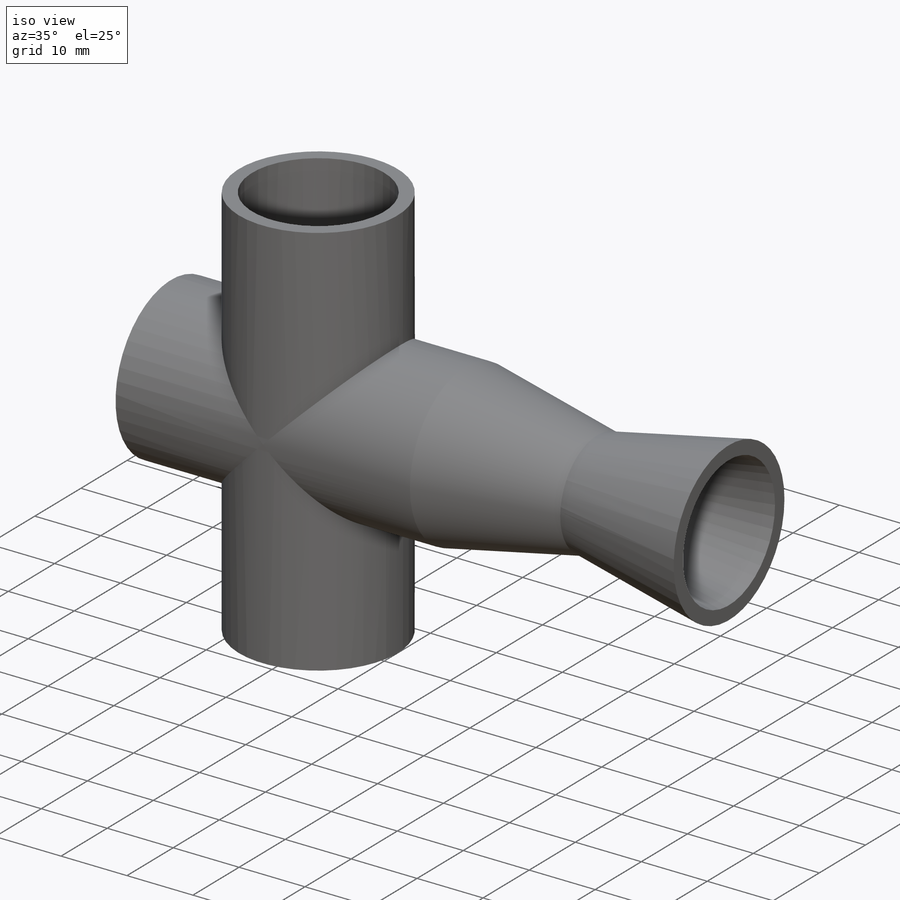
[diagram: iso view]
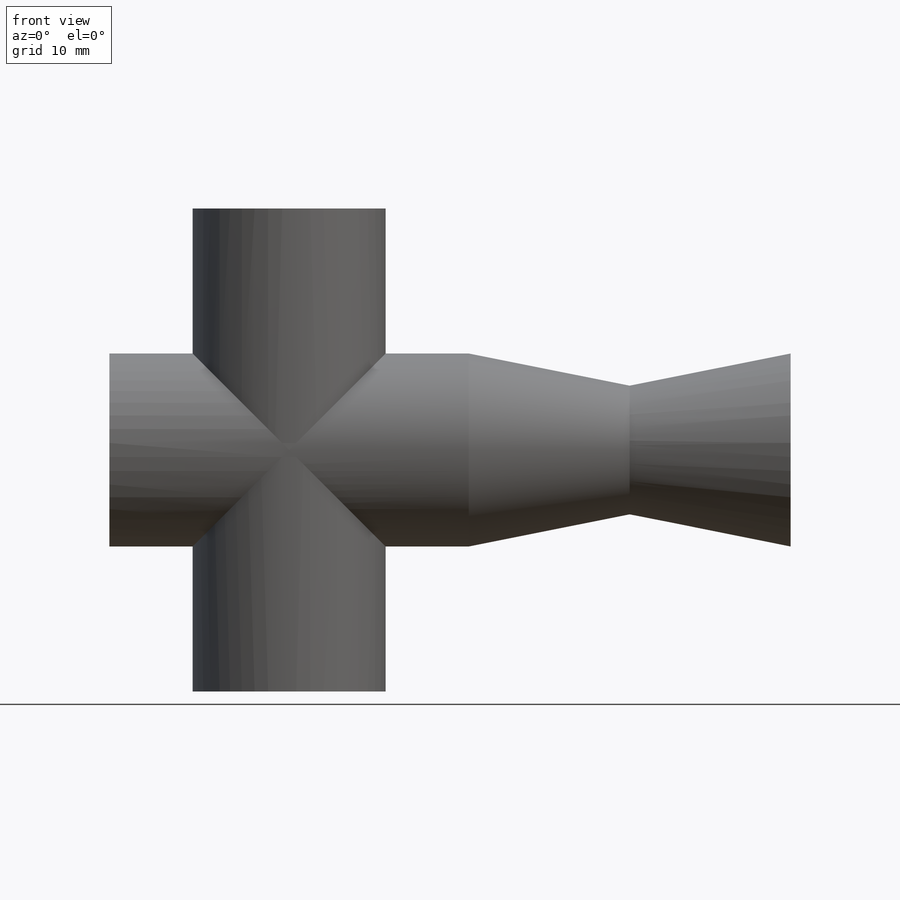
[diagram: front view]
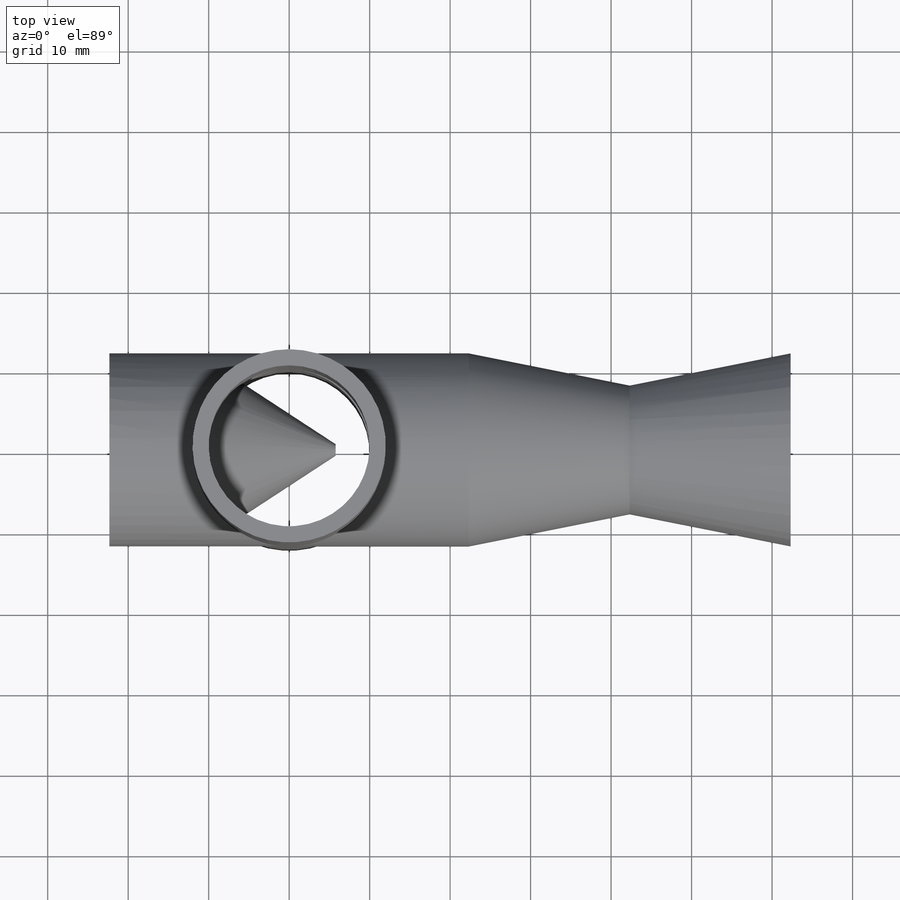
[diagram: top view]
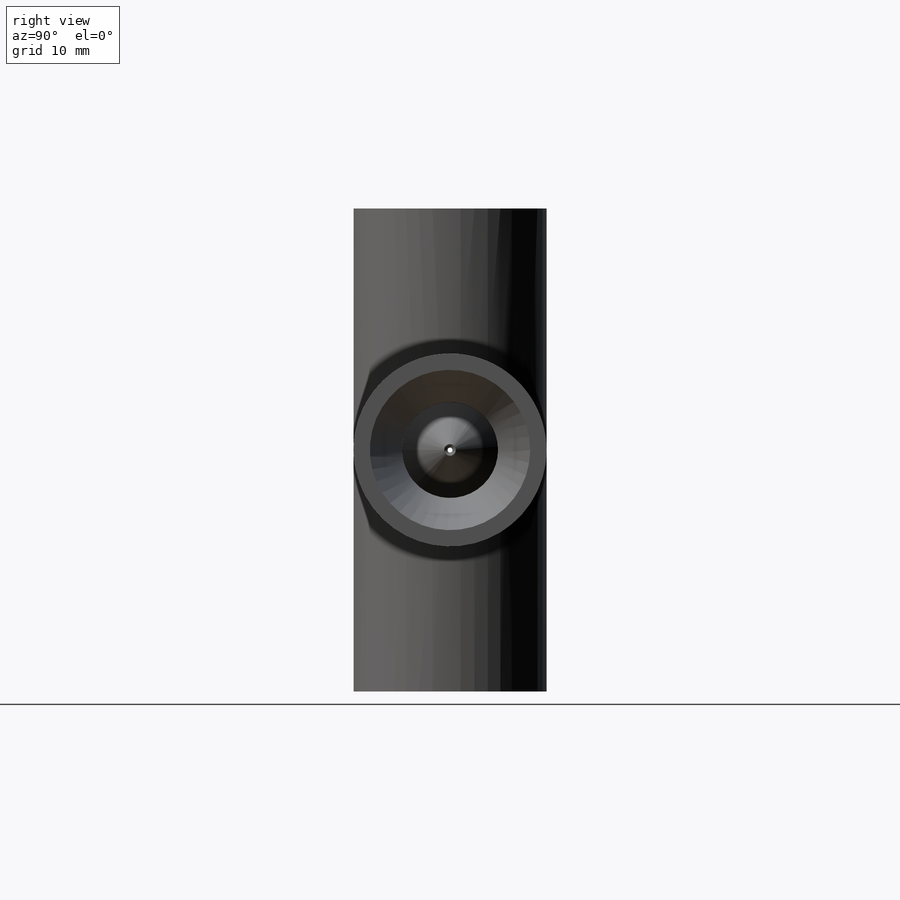
[diagram: right view]
SOLIDWORKS PART (.sldprt)
format: sldprt  version: not decoded by parser v0  size: 209,408 bytes
history: native  units: mm
features: plane x3, sketch x3, revolve x3, material x1, shell x1 (+10 scaffold rows collapsed)
feature tree (21):
  scaffold x10  (default folders/planes/origin — collapsed)
  material  "Material <nicht festgelegt>"
  plane  "Ebene vorne"
  plane  "Ebene oben"
  plane  "Ebene rechts"
  sketch  "Skizze1"  dims[D1=12.0mm D2=2.0mm D3=30.0mm D4=30.0mm]
  revolve  "Rotation1"  Angle=360deg
  sketch  "Skizze2"  dims[D1=12.0mm D2=4.0mm D3=20.0mm]
  revolve  "Rotation2"  Angle=360deg
  shell  "Wandung1"  Thickness=2mm
  sketch  "Skizze4"  dims[c1.D1=2.0mm c1.D3=13.0mm c1.D4=15.0mm c2.D4=~33.170817deg c2.D5=~24.312222mm c2.D2=0.5mm c3.D5=0.3mm c3.D6=5.5mm c3.D2=0.5mm]
  revolve  "Rotation3"  Angle=360deg
decode coverage: 7 of 7 modeling features carry decoded parameters
note: ~ marks probable driven/reference dimensions
note: suppression state not decoded; provenance and decode notes live in map.json
